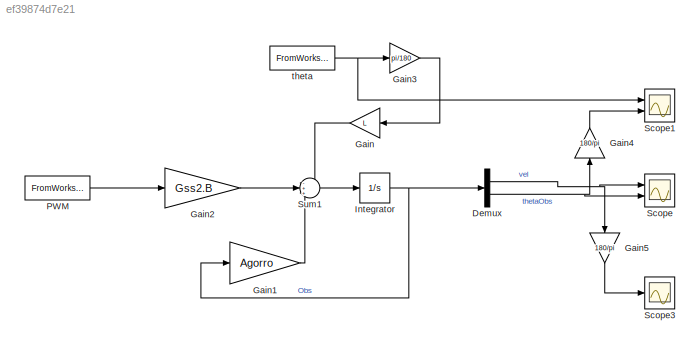
MODEL slx_ef39874d7e21
KIND model
CONFIG AbsTol = auto
CONFIG EnableMultiTasking = off
CONFIG FixedStep = auto
CONFIG MaxStep = auto
CONFIG MinStep = auto
CONFIG RelTol = 1e-3
CONFIG SampleTimeConstraint = Unconstrained
CONFIG SolverName = VariableStepAuto
CONFIG StartTime = 0.0
CONFIG StopTime = 40
BLOCK [Demux] Demux
  Outputs = 2
  Ports = [1, 2]
BLOCK [Gain] Gain
  Gain = L
  Multiplication = Matrix(K*u)
  NameLocation = top
BLOCK [Gain] Gain1
  Gain = Agorro
  Multiplication = Matrix(K*u)
BLOCK [Gain] Gain2
  Gain = Gss2.B
  Multiplication = Matrix(K*u)
BLOCK [Gain] Gain3
  Gain = pi/180
BLOCK [Gain] Gain4
  Gain = 180/pi
  NameLocation = right
BLOCK [Gain] Gain5
  Gain = 180/pi
  NameLocation = left
BLOCK [Integrator] Integrator
  Ports = [1, 1]
BLOCK [FromWorkspace] PWM
  SampleTime = 0.0025
  VariableName = vals(:,[2 3])
BLOCK [Scope] Scope
  Floating = off
  NumInputPorts = 2
  Ports = [2]
  ScopeSpecificationString = Simulink.scopes.TimeScopeBlockCfg('CurrentConfiguration', extmgr.ConfigurationSet(extmgr.Configuration('Core','General UI',true),extmgr.Configuration('Core','Source UI',true),extmgr.Configuration('Sources','WiredSimulink',true),extmgr.Configuration('Visuals','Time Domain',true,'SerializedDisplays',{struct('MinYLimReal','-2.12497','MaxYLimReal','19.12469','YLabelReal','','MinYLimMag','0.00000','Max...<+1367ch>
BLOCK [Scope] Scope1
  Floating = off
  NumInputPorts = 2
  Ports = [2]
  ScopeSpecificationString = Simulink.scopes.TimeScopeBlockCfg('CurrentConfiguration', extmgr.ConfigurationSet(extmgr.Configuration('Core','General UI',true),extmgr.Configuration('Core','Source UI',true),extmgr.Configuration('Sources','WiredSimulink',true,'DataLoggingVariableName','ScopeData1'),extmgr.Configuration('Visuals','Time Domain',true,'SerializedDisplays',{struct('MinYLimReal','-62.13131','MaxYLimReal','559.18182','Y...<+1454ch>
BLOCK [Scope] Scope3
  Floating = off
  NumInputPorts = 1
  Ports = [1]
  ScopeSpecificationString = Simulink.scopes.TimeScopeBlockCfg('CurrentConfiguration', extmgr.ConfigurationSet(extmgr.Configuration('Core','General UI',true),extmgr.Configuration('Core','Source UI',true),extmgr.Configuration('Sources','WiredSimulink',true,'DataLoggingVariableName','ScopeData3'),extmgr.Configuration('Visuals','Time Domain',true,'SerializedDisplays',{struct('MinYLimReal','-121.75157','MaxYLimReal','1095.7641','...<+1426ch>
BLOCK [Sum] Sum1
  Inputs = -++
  Ports = [3, 1]
BLOCK [FromWorkspace] theta
  SampleTime = 0.0025
  VariableName = vals(:,[2,4])
NET Demux:1 -> Gain5:1, Scope:1
NET Demux:2 -> Gain4:1, Scope:2
LINE Gain1:1 -> Sum1:3
LINE Gain2:1 -> Sum1:2
LINE Gain3:1 -> Gain:1
LINE Gain4:1 -> Scope1:2
LINE Gain5:1 -> Scope3:1
LINE Gain:1 -> Sum1:1
NET Integrator:1 -> Demux:1, Gain1:1
LINE PWM:1 -> Gain2:1
LINE Sum1:1 -> Integrator:1
NET theta:1 -> Gain3:1, Scope1:1
note: NET lines group one-source signal fan-out (src -> all destinations, sorted); 1:1 wires keep LINE
